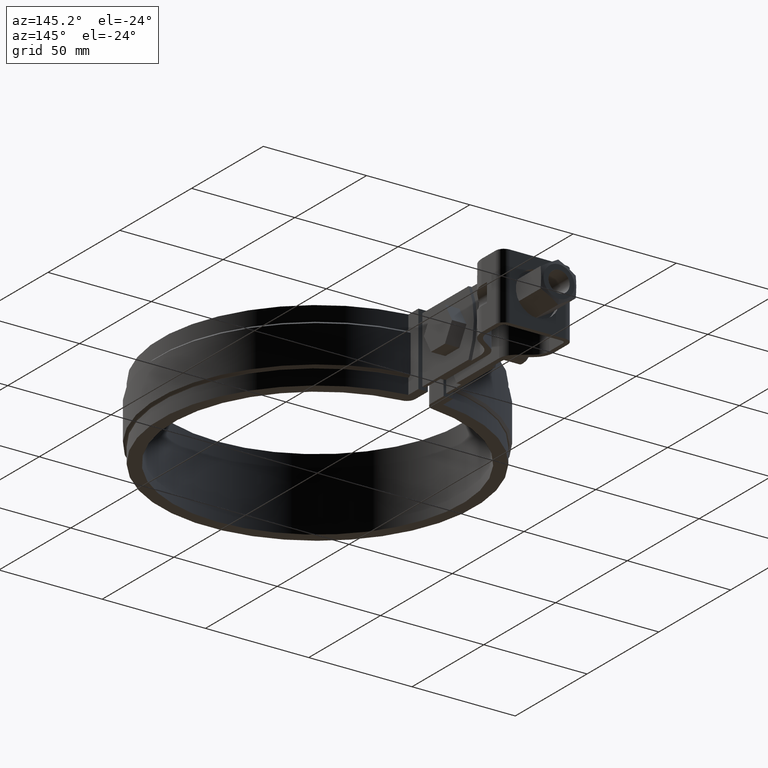
[diagram: clean part render]
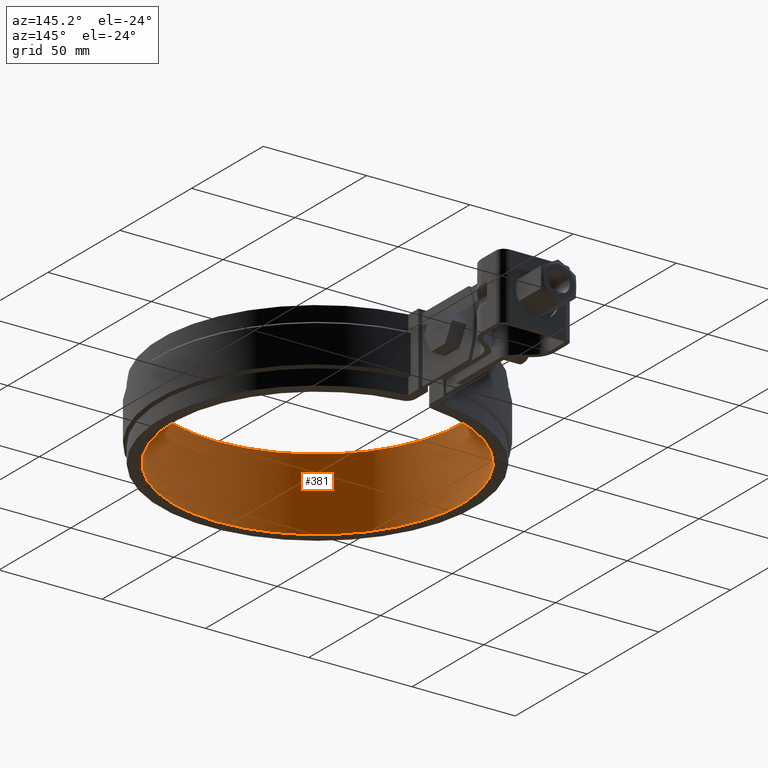
[diagram: same view with one face highlighted and labeled with its STEP entity id]
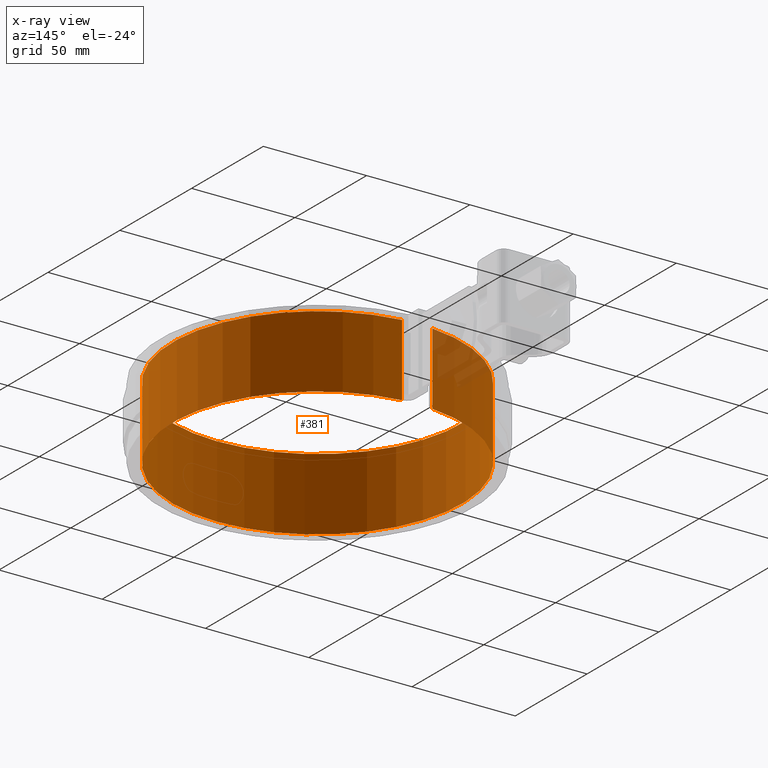
[diagram: x-ray of the same camera — body ghosted, the highlighted face saturated]
A machine part, auxiliary view. The second image highlights one B-rep face of the part: STEP entity #381.
The next image is the same camera in x-ray: the body ghosted, the highlighted face saturated — about 4% of this face is hidden behind the body in this view.
In plain terms, the highlighted cylindrical surface (partial cylindrical patch) has radius 69.9 mm, axis along (0, 0, -1).
Its self-contained STEP definition (entity closure, byte-faithful):
#381 = ADVANCED_FACE( '', ( #635 ), #636, .F. );
#635 = FACE_OUTER_BOUND( '', #1770, .T. );
#636 = CYLINDRICAL_SURFACE( '', #1771, 69.9000000000000 );
#1770 = EDGE_LOOP( '', ( #3693, #3694, #3695, #3696 ) );
#1771 = AXIS2_PLACEMENT_3D( '', #3697, #3698, #3699 );
#3693 = ORIENTED_EDGE( '', *, *, #5165, .T. );
#3694 = ORIENTED_EDGE( '', *, *, #5157, .F. );
#3695 = ORIENTED_EDGE( '', *, *, #5163, .F. );
#3696 = ORIENTED_EDGE( '', *, *, #5152, .T. );
#3697 = CARTESIAN_POINT( '', ( 1.73472347597681E-015, 2.77555756156289E-014, -32.0000000000000 ) );
#3698 = DIRECTION( '', ( 0.000000000000000, 0.000000000000000, -1.00000000000000 ) );
#3699 = DIRECTION( '', ( -0.105548037889040, -0.994414205297659, 0.000000000000000 ) );
#5152 = EDGE_CURVE( '', #5755, #5753, #5756, .T. );
#5157 = EDGE_CURVE( '', #5762, #5764, #5765, .T. );
#5163 = EDGE_CURVE( '', #5755, #5762, #5772, .T. );
#5165 = EDGE_CURVE( '', #5753, #5764, #5774, .T. );
#5753 = VERTEX_POINT( '', #8307 );
#5755 = VERTEX_POINT( '', #8309 );
#5756 = CIRCLE( '', #8310, 69.9000000000000 );
#5762 = VERTEX_POINT( '', #8318 );
#5764 = VERTEX_POINT( '', #8320 );
#5765 = CIRCLE( '', #8321, 69.9000000000000 );
#5772 = LINE( '', #8332, #8333 );
#5774 = LINE( '', #8336, #8337 );
#8307 = CARTESIAN_POINT( '', ( -7.37780784844385, 69.5095529503063, -33.5000000000000 ) );
#8309 = CARTESIAN_POINT( '', ( 7.37780784844383, 69.5095529503064, -33.5000000000000 ) );
#8310 = AXIS2_PLACEMENT_3D( '', #9506, #9507, #9508 );
#8318 = CARTESIAN_POINT( '', ( 7.37780784844383, 69.5095529503064, 1.50000000000000 ) );
#8320 = CARTESIAN_POINT( '', ( -7.37780784844385, 69.5095529503063, 1.50000000000000 ) );
#8321 = AXIS2_PLACEMENT_3D( '', #9517, #9518, #9519 );
#8332 = CARTESIAN_POINT( '', ( 7.37780784844383, 69.5095529503063, -32.0000000000000 ) );
#8333 = VECTOR( '', #9527, 1000.00000000000 );
#8336 = CARTESIAN_POINT( '', ( -7.37780784844384, 69.5095529503063, -32.0000000000000 ) );
#8337 = VECTOR( '', #9529, 1000.00000000000 );
#9506 = CARTESIAN_POINT( '', ( 0.000000000000000, 0.000000000000000, -33.5000000000000 ) );
#9507 = DIRECTION( '', ( 0.000000000000000, 0.000000000000000, -1.00000000000000 ) );
#9508 = DIRECTION( '', ( 1.00000000000000, 0.000000000000000, 0.000000000000000 ) );
#9517 = CARTESIAN_POINT( '', ( 0.000000000000000, 0.000000000000000, 1.50000000000000 ) );
#9518 = DIRECTION( '', ( 0.000000000000000, 0.000000000000000, -1.00000000000000 ) );
#9519 = DIRECTION( '', ( 1.00000000000000, 0.000000000000000, 0.000000000000000 ) );
#9527 = DIRECTION( '', ( 0.000000000000000, 0.000000000000000, 1.00000000000000 ) );
#9529 = DIRECTION( '', ( 0.000000000000000, 0.000000000000000, 1.00000000000000 ) );